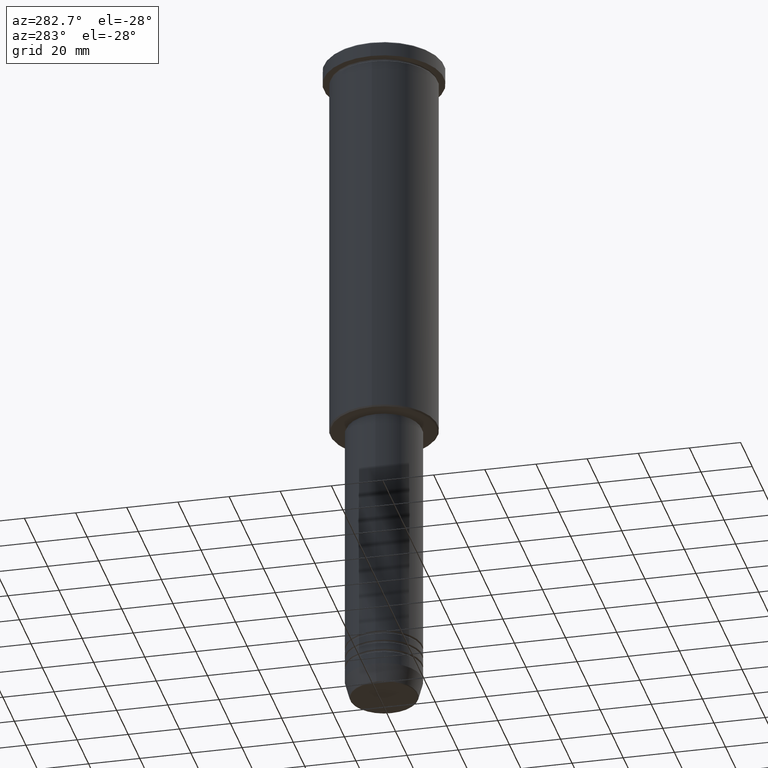
[diagram: clean part render]
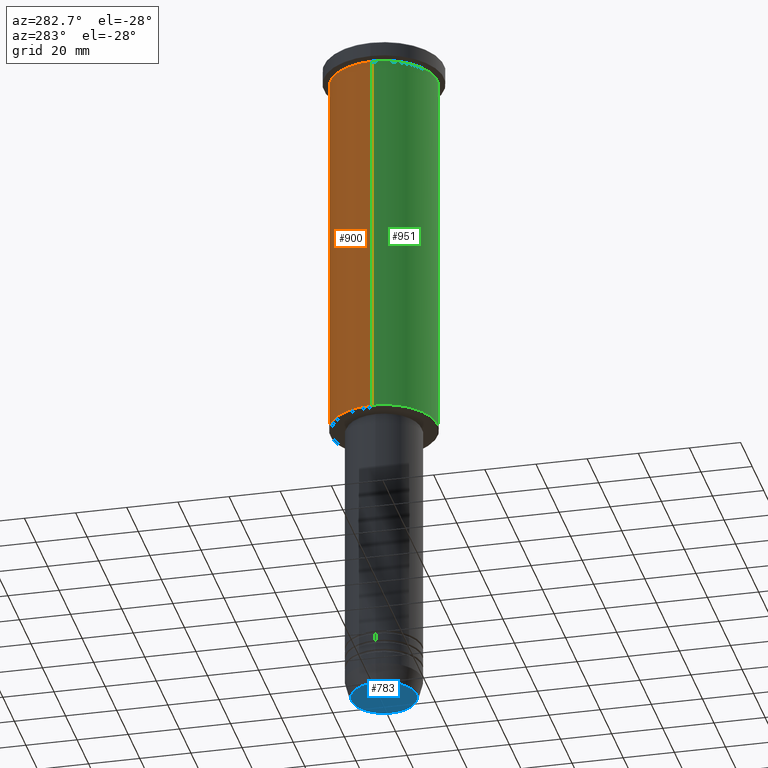
[diagram: same view with three faces highlighted in distinct colors, each labeled with its STEP entity id]
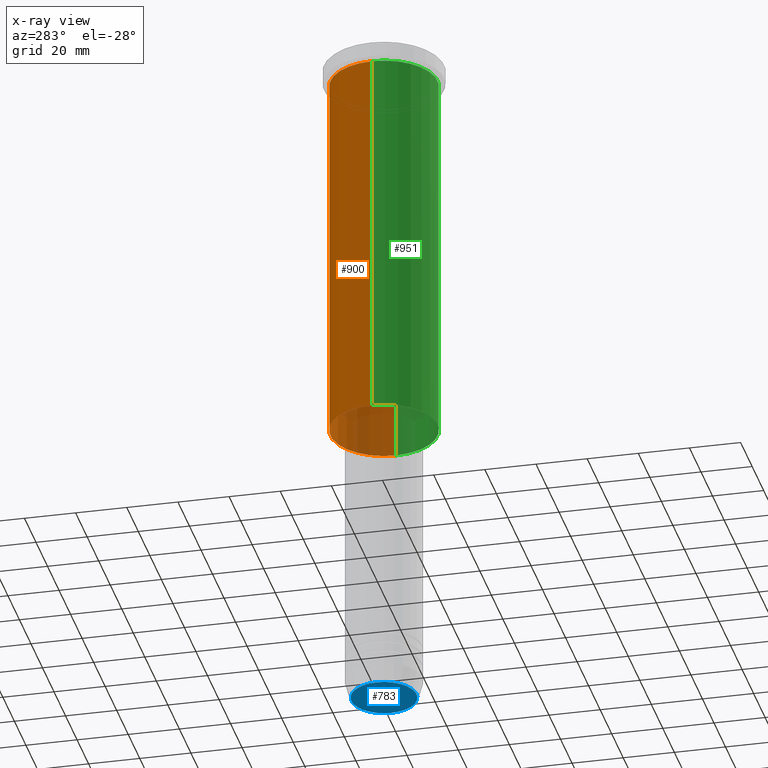
[diagram: x-ray of the same camera — body ghosted, the three highlighted faces saturated]
A machine part, auxiliary view with three faces highlighted in distinct colors.
The next image is the same camera in x-ray (body ghosted, the three faces saturated) — at least one of them is partly hidden behind the body in this view.
Their STEP definitions:

[orange] entity #900 — the highlighted cylindrical surface (partial cylindrical patch) has radius 21 mm, axis along (-0, -0, 1).
#25 = DIRECTION ( 'NONE',  ( -0.000000000000000000, -0.000000000000000000, 1.000000000000000000 ) ) ;
#59 = EDGE_CURVE ( 'NONE', #512, #696, #212, .T. ) ;
#72 = FACE_OUTER_BOUND ( 'NONE', #315, .T. ) ;
#98 = CARTESIAN_POINT ( 'NONE',  ( 21.00000000000000000, 0.000000000000000000, 0.000000000000000000 ) ) ;
#111 = ORIENTED_EDGE ( 'NONE', *, *, #561, .F. ) ;
#131 = EDGE_CURVE ( 'NONE', #456, #183, #1094, .T. ) ;
#155 = DIRECTION ( 'NONE',  ( -0.000000000000000000, -0.000000000000000000, 1.000000000000000000 ) ) ;
#164 = DIRECTION ( 'NONE',  ( -0.000000000000000000, -0.000000000000000000, 1.000000000000000000 ) ) ;
#172 = ORIENTED_EDGE ( 'NONE', *, *, #59, .F. ) ;
#183 = VERTEX_POINT ( 'NONE', #207 ) ;
#207 = CARTESIAN_POINT ( 'NONE',  ( -21.00000000000000000, 2.571758278209441661E-15, -6.999999999999993783 ) ) ;
#212 = LINE ( 'NONE', #98, #675 ) ;
#264 = DIRECTION ( 'NONE',  ( -1.000000000000000000, 0.000000000000000000, 0.000000000000000000 ) ) ;
#265 = ORIENTED_EDGE ( 'NONE', *, *, #131, .T. ) ;
#270 = AXIS2_PLACEMENT_3D ( 'NONE', #782, #155, #528 ) ;
#288 = CARTESIAN_POINT ( 'NONE',  ( -21.00000000000000000, 2.571758278209441661E-15, 0.000000000000000000 ) ) ;
#315 = EDGE_LOOP ( 'NONE', ( #657, #265, #111, #172 ) ) ;
#330 = VECTOR ( 'NONE', #400, 1000.000000000000000 ) ;
#363 = DIRECTION ( 'NONE',  ( -0.000000000000000000, -0.000000000000000000, 1.000000000000000000 ) ) ;
#395 = AXIS2_PLACEMENT_3D ( 'NONE', #1173, #363, #264 ) ;
#400 = DIRECTION ( 'NONE',  ( -0.000000000000000000, -0.000000000000000000, 1.000000000000000000 ) ) ;
#456 = VERTEX_POINT ( 'NONE', #718 ) ;
#489 = CIRCLE ( 'NONE', #395, 21.00000000000000000 ) ;
#491 = AXIS2_PLACEMENT_3D ( 'NONE', #1171, #164, #711 ) ;
#512 = VERTEX_POINT ( 'NONE', #758 ) ;
#528 = DIRECTION ( 'NONE',  ( 1.000000000000000000, 0.000000000000000000, 0.000000000000000000 ) ) ;
#561 = EDGE_CURVE ( 'NONE', #696, #183, #786, .T. ) ;
#632 = CYLINDRICAL_SURFACE ( 'NONE', #491, 21.00000000000000000 ) ;
#657 = ORIENTED_EDGE ( 'NONE', *, *, #744, .T. ) ;
#675 = VECTOR ( 'NONE', #25, 1000.000000000000000 ) ;
#696 = VERTEX_POINT ( 'NONE', #960 ) ;
#711 = DIRECTION ( 'NONE',  ( 1.000000000000000000, 0.000000000000000000, 0.000000000000000000 ) ) ;
#718 = CARTESIAN_POINT ( 'NONE',  ( -21.00000000000000000, 2.571758278209441661E-15, -155.4999999999999716 ) ) ;
#744 = EDGE_CURVE ( 'NONE', #512, #456, #489, .T. ) ;
#758 = CARTESIAN_POINT ( 'NONE',  ( 21.00000000000000000, 0.000000000000000000, -155.4999999999999716 ) ) ;
#782 = CARTESIAN_POINT ( 'NONE',  ( 0.000000000000000000, 0.000000000000000000, -6.999999999999993783 ) ) ;
#786 = CIRCLE ( 'NONE', #270, 21.00000000000000000 ) ;
#900 = ADVANCED_FACE ( 'NONE', ( #72 ), #632, .T. ) ;
#960 = CARTESIAN_POINT ( 'NONE',  ( 21.00000000000000000, 0.000000000000000000, -6.999999999999993783 ) ) ;
#1094 = LINE ( 'NONE', #288, #330 ) ;
#1171 = CARTESIAN_POINT ( 'NONE',  ( 0.000000000000000000, 0.000000000000000000, 0.000000000000000000 ) ) ;
#1173 = CARTESIAN_POINT ( 'NONE',  ( 0.000000000000000000, 0.000000000000000000, -155.4999999999999716 ) ) ;

[blue] entity #783 — the highlighted planar face has unit normal (0, -0, 1).
#48 = EDGE_CURVE ( 'NONE', #747, #630, #1088, .T. ) ;
#82 = CIRCLE ( 'NONE', #609, 12.74069215899265828 ) ;
#108 = ORIENTED_EDGE ( 'NONE', *, *, #48, .T. ) ;
#136 = DIRECTION ( 'NONE',  ( 0.000000000000000000, -0.000000000000000000, 1.000000000000000000 ) ) ;
#227 = CARTESIAN_POINT ( 'NONE',  ( 0.000000000000000000, 0.000000000000000000, -271.0000000000000000 ) ) ;
#283 = DIRECTION ( 'NONE',  ( 0.000000000000000000, 0.000000000000000000, -1.000000000000000000 ) ) ;
#289 = AXIS2_PLACEMENT_3D ( 'NONE', #579, #283, #387 ) ;
#297 = CARTESIAN_POINT ( 'NONE',  ( 12.74069215899265828, 0.000000000000000000, -271.0000000000000000 ) ) ;
#359 = DIRECTION ( 'NONE',  ( 0.000000000000000000, 0.000000000000000000, -1.000000000000000000 ) ) ;
#387 = DIRECTION ( 'NONE',  ( 1.000000000000000000, 0.000000000000000000, 0.000000000000000000 ) ) ;
#424 = ORIENTED_EDGE ( 'NONE', *, *, #594, .T. ) ;
#560 = CARTESIAN_POINT ( 'NONE',  ( 0.000000000000000000, 0.000000000000000000, -271.0000000000000000 ) ) ;
#579 = CARTESIAN_POINT ( 'NONE',  ( 0.000000000000000000, 0.000000000000000000, -271.0000000000000000 ) ) ;
#594 = EDGE_CURVE ( 'NONE', #630, #747, #82, .T. ) ;
#604 = PLANE ( 'NONE',  #787 ) ;
#609 = AXIS2_PLACEMENT_3D ( 'NONE', #560, #359, #635 ) ;
#615 = FACE_OUTER_BOUND ( 'NONE', #950, .T. ) ;
#630 = VERTEX_POINT ( 'NONE', #297 ) ;
#635 = DIRECTION ( 'NONE',  ( 1.000000000000000000, 0.000000000000000000, 0.000000000000000000 ) ) ;
#639 = CARTESIAN_POINT ( 'NONE',  ( -12.74069215899265828, 1.589857736427680246E-15, -271.0000000000000000 ) ) ;
#747 = VERTEX_POINT ( 'NONE', #639 ) ;
#783 = ADVANCED_FACE ( 'NONE', ( #615 ), #604, .F. ) ;
#787 = AXIS2_PLACEMENT_3D ( 'NONE', #227, #136, #873 ) ;
#873 = DIRECTION ( 'NONE',  ( 1.000000000000000000, 0.000000000000000000, 0.000000000000000000 ) ) ;
#950 = EDGE_LOOP ( 'NONE', ( #424, #108 ) ) ;
#1088 = CIRCLE ( 'NONE', #289, 12.74069215899265828 ) ;

[green] entity #951 — the highlighted cylindrical surface (partial cylindrical patch) has radius 21 mm, axis along (-0, -0, 1).
#5 = AXIS2_PLACEMENT_3D ( 'NONE', #173, #256, #535 ) ;
#25 = DIRECTION ( 'NONE',  ( -0.000000000000000000, -0.000000000000000000, 1.000000000000000000 ) ) ;
#36 = ORIENTED_EDGE ( 'NONE', *, *, #131, .F. ) ;
#59 = EDGE_CURVE ( 'NONE', #512, #696, #212, .T. ) ;
#74 = CARTESIAN_POINT ( 'NONE',  ( 0.000000000000000000, 0.000000000000000000, -6.999999999999993783 ) ) ;
#75 = ORIENTED_EDGE ( 'NONE', *, *, #1004, .T. ) ;
#95 = CARTESIAN_POINT ( 'NONE',  ( 0.000000000000000000, 0.000000000000000000, -155.4999999999999716 ) ) ;
#98 = CARTESIAN_POINT ( 'NONE',  ( 21.00000000000000000, 0.000000000000000000, 0.000000000000000000 ) ) ;
#131 = EDGE_CURVE ( 'NONE', #456, #183, #1094, .T. ) ;
#158 = AXIS2_PLACEMENT_3D ( 'NONE', #74, #367, #730 ) ;
#173 = CARTESIAN_POINT ( 'NONE',  ( 0.000000000000000000, 0.000000000000000000, 0.000000000000000000 ) ) ;
#183 = VERTEX_POINT ( 'NONE', #207 ) ;
#207 = CARTESIAN_POINT ( 'NONE',  ( -21.00000000000000000, 2.571758278209441661E-15, -6.999999999999993783 ) ) ;
#212 = LINE ( 'NONE', #98, #675 ) ;
#256 = DIRECTION ( 'NONE',  ( -0.000000000000000000, -0.000000000000000000, 1.000000000000000000 ) ) ;
#288 = CARTESIAN_POINT ( 'NONE',  ( -21.00000000000000000, 2.571758278209441661E-15, 0.000000000000000000 ) ) ;
#330 = VECTOR ( 'NONE', #400, 1000.000000000000000 ) ;
#367 = DIRECTION ( 'NONE',  ( -0.000000000000000000, -0.000000000000000000, 1.000000000000000000 ) ) ;
#389 = EDGE_CURVE ( 'NONE', #183, #696, #734, .T. ) ;
#400 = DIRECTION ( 'NONE',  ( -0.000000000000000000, -0.000000000000000000, 1.000000000000000000 ) ) ;
#434 = CIRCLE ( 'NONE', #532, 21.00000000000000000 ) ;
#442 = DIRECTION ( 'NONE',  ( -0.000000000000000000, -0.000000000000000000, 1.000000000000000000 ) ) ;
#456 = VERTEX_POINT ( 'NONE', #718 ) ;
#463 = CYLINDRICAL_SURFACE ( 'NONE', #5, 21.00000000000000000 ) ;
#468 = DIRECTION ( 'NONE',  ( -1.000000000000000000, 0.000000000000000000, 0.000000000000000000 ) ) ;
#512 = VERTEX_POINT ( 'NONE', #758 ) ;
#532 = AXIS2_PLACEMENT_3D ( 'NONE', #95, #442, #468 ) ;
#535 = DIRECTION ( 'NONE',  ( 1.000000000000000000, 0.000000000000000000, 0.000000000000000000 ) ) ;
#539 = ORIENTED_EDGE ( 'NONE', *, *, #59, .T. ) ;
#664 = EDGE_LOOP ( 'NONE', ( #36, #75, #539, #712 ) ) ;
#675 = VECTOR ( 'NONE', #25, 1000.000000000000000 ) ;
#696 = VERTEX_POINT ( 'NONE', #960 ) ;
#712 = ORIENTED_EDGE ( 'NONE', *, *, #389, .F. ) ;
#718 = CARTESIAN_POINT ( 'NONE',  ( -21.00000000000000000, 2.571758278209441661E-15, -155.4999999999999716 ) ) ;
#730 = DIRECTION ( 'NONE',  ( 1.000000000000000000, 0.000000000000000000, 0.000000000000000000 ) ) ;
#734 = CIRCLE ( 'NONE', #158, 21.00000000000000000 ) ;
#758 = CARTESIAN_POINT ( 'NONE',  ( 21.00000000000000000, 0.000000000000000000, -155.4999999999999716 ) ) ;
#951 = ADVANCED_FACE ( 'NONE', ( #1074 ), #463, .T. ) ;
#960 = CARTESIAN_POINT ( 'NONE',  ( 21.00000000000000000, 0.000000000000000000, -6.999999999999993783 ) ) ;
#1004 = EDGE_CURVE ( 'NONE', #456, #512, #434, .T. ) ;
#1074 = FACE_OUTER_BOUND ( 'NONE', #664, .T. ) ;
#1094 = LINE ( 'NONE', #288, #330 ) ;